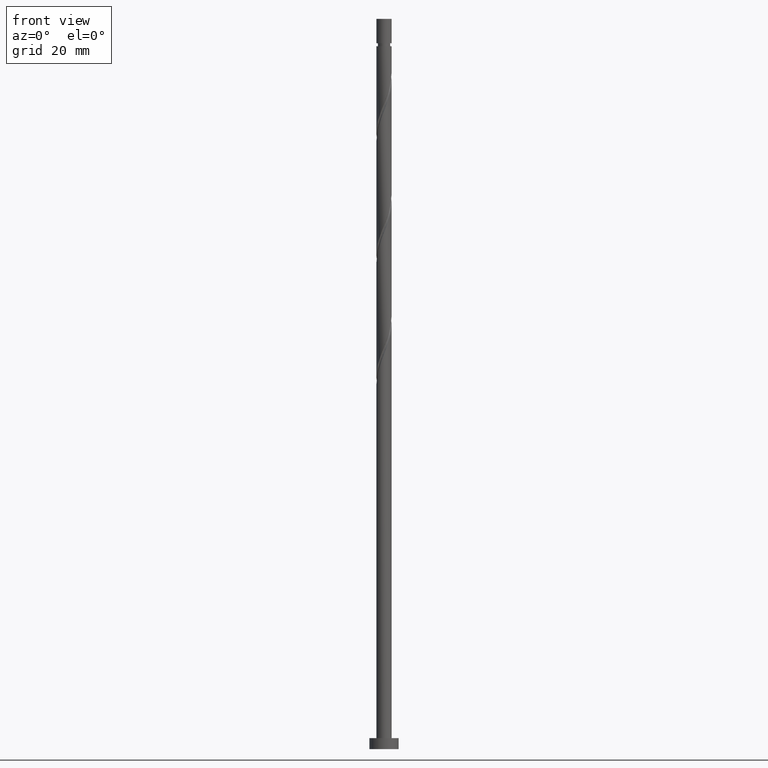
[diagram: clean part render]
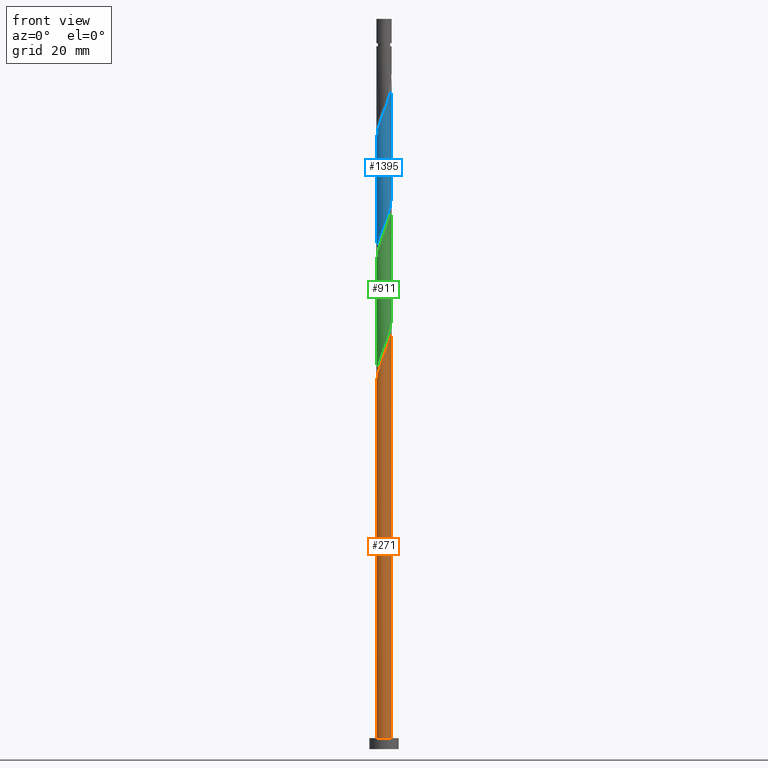
[diagram: same view with three faces highlighted in distinct colors, each labeled with its STEP entity id]
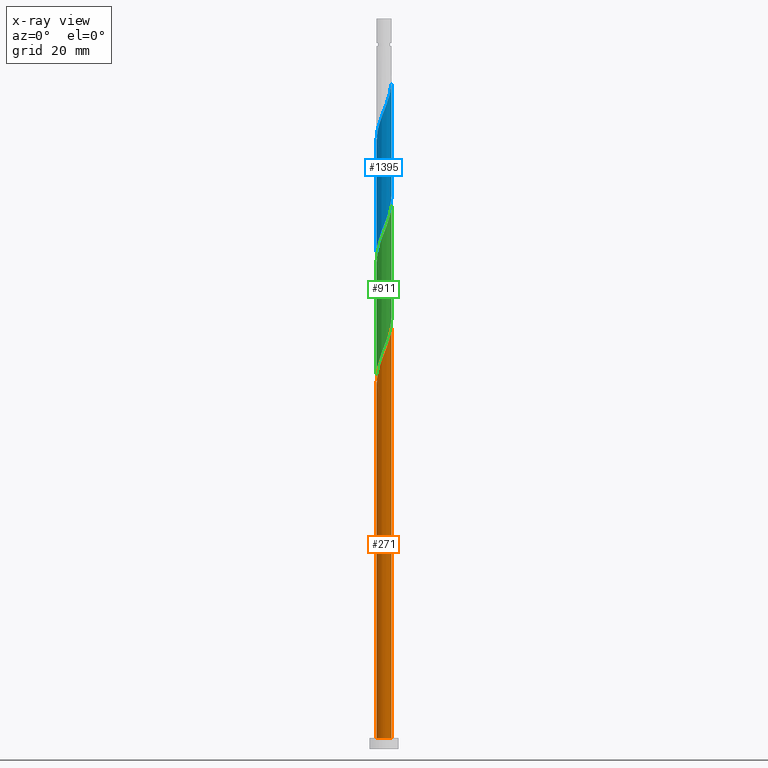
[diagram: x-ray of the same camera — body ghosted, the three highlighted faces saturated]
A machine part, front view with three faces highlighted in distinct colors.
The next image is the same camera in x-ray (body ghosted, the three faces saturated) — at least one of them is partly hidden behind the body in this view.
Their STEP definitions:

[orange] entity #271 — the highlighted cylindrical surface (edge-blend (fillet) strip) has radius 2.1 mm, axis along (-0, -0, -1).
#65 = FACE_OUTER_BOUND ( 'NONE', #447, .T. ) ;
#77 = ORIENTED_EDGE ( 'NONE', *, *, #1539, .F. ) ;
#81 = EDGE_CURVE ( 'NONE', #1421, #1698, #626, .T. ) ;
#103 = CARTESIAN_POINT ( 'NONE',  ( 1.390907446731897590, -1.573332919195986612, 111.9406361882132757 ) ) ;
#129 = CARTESIAN_POINT ( 'NONE',  ( 0.1469538835499195339, -2.113016884088533942, 108.4684139659910613 ) ) ;
#137 = CARTESIAN_POINT ( 'NONE',  ( 0.6888355636196421550, -2.002983115911472378, 109.8573028548799613 ) ) ;
#231 = CARTESIAN_POINT ( 'NONE',  ( -2.100000000000003197, -1.517809121027418622E-15, 99.76595842189209407 ) ) ;
#261 = CARTESIAN_POINT ( 'NONE',  ( -1.159729562813039960, -1.750721948550792995, 104.9961917437688470 ) ) ;
#266 = VECTOR ( 'NONE', #1548, 1000.000000000000000 ) ;
#271 = ADVANCED_FACE ( 'NONE', ( #65 ), #1303, .T. ) ;
#278 = CARTESIAN_POINT ( 'NONE',  ( 2.100000000000003197, 2.093529822106784298E-16, 116.4326250885587655 ) ) ;
#285 = CARTESIAN_POINT ( 'NONE',  ( 0.000000000000000000, 0.000000000000000000, 3.000000000000000000 ) ) ;
#286 = CARTESIAN_POINT ( 'NONE',  ( -2.100000000000003197, -1.517809121027418622E-15, 99.76595842189209407 ) ) ;
#387 = DIRECTION ( 'NONE',  ( 0.000000000000000000, 0.000000000000000000, 1.000000000000000000 ) ) ;
#395 = CARTESIAN_POINT ( 'NONE',  ( -2.002983115911472378, -0.6888355636196421550, 101.5239695215465900 ) ) ;
#447 = EDGE_LOOP ( 'NONE', ( #77, #869, #794, #931 ) ) ;
#500 = CARTESIAN_POINT ( 'NONE',  ( 2.096034463814500537, -0.1289942886405184008, 116.1073028548799471 ) ) ;
#522 = CARTESIAN_POINT ( 'NONE',  ( -1.879716237191310535, -0.9363049010014599105, 102.2184139659910471 ) ) ;
#613 = DIRECTION ( 'NONE',  ( -0.000000000000000000, -0.000000000000000000, -1.000000000000000000 ) ) ;
#626 = LINE ( 'NONE', #1406, #266 ) ;
#638 = CARTESIAN_POINT ( 'NONE',  ( 0.000000000000000000, 0.000000000000000000, 200.0000000000000000 ) ) ;
#641 = CARTESIAN_POINT ( 'NONE',  ( 1.750721948550792550, -1.159729562813040848, 113.3295250771021756 ) ) ;
#680 = CARTESIAN_POINT ( 'NONE',  ( 2.100000000000000089, 2.571758278209441957E-16, 200.0000000000000000 ) ) ;
#704 = DIRECTION ( 'NONE',  ( -0.000000000000000000, -0.000000000000000000, -1.000000000000000000 ) ) ;
#727 =( BOUNDED_CURVE ( )  B_SPLINE_CURVE ( 2, ( #231, #1738, #1448, #395, #522, #933, #1308, #1466, #261, #939, #796, #1334, #1475, #129, #1744, #137, #1168, #1709, #103, #1042, #641, #777, #1178, #1714, #500, #1585, #1315 ),
 .UNSPECIFIED., .F., .T. ) 
 B_SPLINE_CURVE_WITH_KNOTS ( ( 3, 2, 2, 2, 2, 2, 2, 2, 2, 2, 2, 2, 2, 3 ),
 ( 0.05453176698144632240, 0.06250000000000000000, 0.07291666666666662966, 0.08333333333333337034, 0.09375000000000000000, 0.1041666666666666297, 0.1145833333333333703, 0.1250000000000000000, 0.1354166666666666297, 0.1458333333333333703, 0.1562500000000000000, 0.1666666666666666297, 0.1770833333333333703, 0.1795317669814462669 ),
 .UNSPECIFIED. ) 
 CURVE ( )  GEOMETRIC_REPRESENTATION_ITEM ( )  RATIONAL_B_SPLINE_CURVE ( ( 0.9062941362546566015, 0.9031415850403607948, 0.9090909090909363721, 0.9013135103398545178, 0.9090909090909363721, 0.9013135103398545178, 0.9090909090909363721, 0.9013135103398545178, 0.9090909090909363721, 0.9013135103398545178, 0.9090909090909363721, 0.9013135103398545178, 0.9090909090909363721, 0.9013135103398545178, 0.9090909090909363721, 0.9013135103398545178, 0.9090909090909363721, 0.9013135103398545178, 0.9090909090909363721, 0.9013135103398545178, 0.9090909090909363721, 0.9013135103398545178, 0.9090909090909363721, 0.9013135103398545178, 0.9090909090909363721, 0.9072628343904300952, 0.9062941362546566015 ) ) 
 REPRESENTATION_ITEM ( '' )  );
#746 = AXIS2_PLACEMENT_3D ( 'NONE', #638, #613, #1418 ) ;
#777 = CARTESIAN_POINT ( 'NONE',  ( 1.903403242021069364, -0.9292426457052566091, 114.0239695215466185 ) ) ;
#794 = ORIENTED_EDGE ( 'NONE', *, *, #81, .T. ) ;
#796 = CARTESIAN_POINT ( 'NONE',  ( -0.6670925532681054593, -1.991227642780768248, 106.3850806326577043 ) ) ;
#826 = AXIS2_PLACEMENT_3D ( 'NONE', #285, #387, #1363 ) ;
#869 = ORIENTED_EDGE ( 'NONE', *, *, #1403, .F. ) ;
#931 = ORIENTED_EDGE ( 'NONE', *, *, #1225, .T. ) ;
#933 = CARTESIAN_POINT ( 'NONE',  ( -1.756449358471149358, -1.183774238383277222, 102.9128584104355184 ) ) ;
#939 = CARTESIAN_POINT ( 'NONE',  ( -0.9292426457052566091, -1.903403242021069586, 105.6906361882132899 ) ) ;
#1013 = CARTESIAN_POINT ( 'NONE',  ( -2.100000000000000089, 0.000000000000000000, 3.000000000000000000 ) ) ;
#1042 = CARTESIAN_POINT ( 'NONE',  ( 1.598040655080517958, -1.390216479920825421, 112.6350806326577185 ) ) ;
#1168 = CARTESIAN_POINT ( 'NONE',  ( 0.9363049010014595774, -1.879716237191310979, 110.5517472993243899 ) ) ;
#1178 = CARTESIAN_POINT ( 'NONE',  ( 1.991227642780768248, -0.6670925532681055703, 114.7184139659910613 ) ) ;
#1225 = EDGE_CURVE ( 'NONE', #1698, #1656, #1594, .T. ) ;
#1235 = VERTEX_POINT ( 'NONE', #278 ) ;
#1240 = LINE ( 'NONE', #680, #1595 ) ;
#1303 = CYLINDRICAL_SURFACE ( 'NONE', #746, 2.100000000000000089 ) ;
#1308 = CARTESIAN_POINT ( 'NONE',  ( -1.573332919195986390, -1.390907446731897590, 103.6073028548799471 ) ) ;
#1315 = CARTESIAN_POINT ( 'NONE',  ( 2.100000000000003197, 2.093529822106784298E-16, 116.4326250885587655 ) ) ;
#1334 = CARTESIAN_POINT ( 'NONE',  ( -0.4049424608309540319, -2.079052043540467132, 107.0795250771021898 ) ) ;
#1363 = DIRECTION ( 'NONE',  ( 1.000000000000000000, 0.000000000000000000, 0.000000000000000000 ) ) ;
#1403 = EDGE_CURVE ( 'NONE', #1421, #1235, #727, .T. ) ;
#1406 = CARTESIAN_POINT ( 'NONE',  ( -2.100000000000000089, 0.000000000000000000, 200.0000000000000000 ) ) ;
#1418 = DIRECTION ( 'NONE',  ( -1.000000000000000000, 0.000000000000000000, 0.000000000000000000 ) ) ;
#1421 = VERTEX_POINT ( 'NONE', #286 ) ;
#1448 = CARTESIAN_POINT ( 'NONE',  ( -2.058000000000002938, -0.4178947235847812469, 100.8295250771021756 ) ) ;
#1466 = CARTESIAN_POINT ( 'NONE',  ( -1.390216479920825421, -1.598040655080517958, 104.3017472993243899 ) ) ;
#1475 = CARTESIAN_POINT ( 'NONE',  ( -0.1289942886405173184, -2.096034463814500537, 107.7739695215465900 ) ) ;
#1539 = EDGE_CURVE ( 'NONE', #1235, #1656, #1240, .T. ) ;
#1548 = DIRECTION ( 'NONE',  ( -0.000000000000000000, -0.000000000000000000, -1.000000000000000000 ) ) ;
#1568 = CARTESIAN_POINT ( 'NONE',  ( 2.100000000000000089, 2.571758278209441957E-16, 3.000000000000000000 ) ) ;
#1585 = CARTESIAN_POINT ( 'NONE',  ( 2.100000000000002753, -0.06455809848111707105, 116.2694614005306164 ) ) ;
#1594 = CIRCLE ( 'NONE', #826, 2.100000000000000089 ) ;
#1595 = VECTOR ( 'NONE', #704, 1000.000000000000000 ) ;
#1656 = VERTEX_POINT ( 'NONE', #1568 ) ;
#1698 = VERTEX_POINT ( 'NONE', #1013 ) ;
#1709 = CARTESIAN_POINT ( 'NONE',  ( 1.183774238383277222, -1.756449358471149358, 111.2461917437688470 ) ) ;
#1714 = CARTESIAN_POINT ( 'NONE',  ( 2.079052043540467132, -0.4049424608309550866, 115.4128584104355184 ) ) ;
#1738 = CARTESIAN_POINT ( 'NONE',  ( -2.100000000000002753, -0.2110579412044350234, 100.2993847910813656 ) ) ;
#1744 = CARTESIAN_POINT ( 'NONE',  ( 0.4178947235847810249, -2.058000000000002938, 109.1628584104354758 ) ) ;

[blue] entity #1395 — the highlighted cylindrical surface (edge-blend (fillet) strip) has radius 2.1 mm, axis along (-0, -0, -1).
#24 = VERTEX_POINT ( 'NONE', #468 ) ;
#37 = CARTESIAN_POINT ( 'NONE',  ( 1.879716237191306538, -0.9363049010014606877, 149.4406361882132899 ) ) ;
#40 = CARTESIAN_POINT ( 'NONE',  ( -0.4049424608309540319, -2.079052043540467132, 173.7461917437688612 ) ) ;
#72 = CARTESIAN_POINT ( 'NONE',  ( -1.390907446731896480, -1.573332919195983504, 139.7184139659910329 ) ) ;
#79 = CARTESIAN_POINT ( 'NONE',  ( -0.1469538835499210883, -2.113016884088530833, 143.1906361882132614 ) ) ;
#91 = CARTESIAN_POINT ( 'NONE',  ( 0.9363049010014595774, -1.879716237191310979, 177.2184139659910898 ) ) ;
#92 = LINE ( 'NONE', #1160, #123 ) ;
#97 = CARTESIAN_POINT ( 'NONE',  ( 0.1289942886405152644, -2.096034463814497428, 143.8850806326576901 ) ) ;
#108 = EDGE_CURVE ( 'NONE', #24, #1257, #92, .T. ) ;
#112 = DIRECTION ( 'NONE',  ( -0.000000000000000000, -0.000000000000000000, -1.000000000000000000 ) ) ;
#123 = VECTOR ( 'NONE', #966, 1000.000000000000000 ) ;
#172 = CARTESIAN_POINT ( 'NONE',  ( -0.6670925532681054593, -1.991227642780768248, 173.0517472993243757 ) ) ;
#197 = CARTESIAN_POINT ( 'NONE',  ( -1.573332919195986390, -1.390907446731897590, 170.2739695215466043 ) ) ;
#236 = CARTESIAN_POINT ( 'NONE',  ( 1.159729562813037296, -1.750721948550791884, 146.6628584104354900 ) ) ;
#273 = CYLINDRICAL_SURFACE ( 'NONE', #1200, 2.100000000000000089 ) ;
#319 = CARTESIAN_POINT ( 'NONE',  ( -2.100000000000003642, -0.2110579412044321923, 166.9660514577480797 ) ) ;
#345 = EDGE_CURVE ( 'NONE', #1306, #871, #1113, .T. ) ;
#348 = CARTESIAN_POINT ( 'NONE',  ( 0.6888355636196421550, -2.002983115911472378, 176.5239695215466043 ) ) ;
#356 = CARTESIAN_POINT ( 'NONE',  ( 2.079052043540467132, -0.4049424608309550866, 182.0795250771022324 ) ) ;
#366 = CARTESIAN_POINT ( 'NONE',  ( 1.183774238383277222, -1.756449358471149358, 177.9128584104355184 ) ) ;
#374 = CARTESIAN_POINT ( 'NONE',  ( -0.6888355636196425991, -2.002983115911469270, 141.8017472993244041 ) ) ;
#411 = DIRECTION ( 'NONE',  ( -0.000000000000000000, -0.000000000000000000, -1.000000000000000000 ) ) ;
#413 = CARTESIAN_POINT ( 'NONE',  ( 1.573332919195983504, -1.390907446731896480, 148.0517472993244041 ) ) ;
#429 = CARTESIAN_POINT ( 'NONE',  ( -1.159729562813039960, -1.750721948550792995, 171.6628584104354900 ) ) ;
#441 = ORIENTED_EDGE ( 'NONE', *, *, #1625, .F. ) ;
#462 = CARTESIAN_POINT ( 'NONE',  ( 2.002983115911468381, -0.6888355636196433762, 150.1350806326577469 ) ) ;
#468 = CARTESIAN_POINT ( 'NONE',  ( -2.100000000000002753, -8.299350366209036018E-16, 166.4326250885587513 ) ) ;
#483 = CARTESIAN_POINT ( 'NONE',  ( 0.6670925532681029058, -1.991227642780765139, 145.2739695215466043 ) ) ;
#485 = CARTESIAN_POINT ( 'NONE',  ( 1.991227642780768248, -0.6670925532681055703, 181.3850806326577185 ) ) ;
#575 = CARTESIAN_POINT ( 'NONE',  ( -0.1289942886405173184, -2.096034463814500537, 174.4406361882132614 ) ) ;
#592 = CARTESIAN_POINT ( 'NONE',  ( -1.879716237191310535, -0.9363049010014599105, 168.8850806326576901 ) ) ;
#593 = ORIENTED_EDGE ( 'NONE', *, *, #609, .F. ) ;
#602 = ORIENTED_EDGE ( 'NONE', *, *, #108, .T. ) ;
#609 = EDGE_CURVE ( 'NONE', #24, #1306, #1038, .T. ) ;
#625 = CARTESIAN_POINT ( 'NONE',  ( 1.903403242021069364, -0.9292426457052566091, 180.6906361882133183 ) ) ;
#634 = CARTESIAN_POINT ( 'NONE',  ( -1.183774238383277000, -1.756449358471145805, 140.4128584104355184 ) ) ;
#668 =( BOUNDED_CURVE ( )  B_SPLINE_CURVE ( 2, ( #1630, #1246, #1636, #462, #37, #1005, #413, #955, #236, #771, #483, #1589, #97, #79, #1577, #374, #1684, #634, #72, #1560, #1287, #1152, #749, #762, #1028, #918, #740 ),
 .UNSPECIFIED., .F., .T. ) 
 B_SPLINE_CURVE_WITH_KNOTS ( ( 3, 2, 2, 2, 2, 2, 2, 2, 2, 2, 2, 2, 2, 3 ),
 ( 0.5545317669814460171, 0.5625000000000000000, 0.5729166666666666297, 0.5833333333333333703, 0.5937500000000000000, 0.6041666666666666297, 0.6145833333333333703, 0.6250000000000000000, 0.6354166666666666297, 0.6458333333333333703, 0.6562500000000000000, 0.6666666666666666297, 0.6770833333333333703, 0.6795317669814463502 ),
 .UNSPECIFIED. ) 
 CURVE ( )  GEOMETRIC_REPRESENTATION_ITEM ( )  RATIONAL_B_SPLINE_CURVE ( ( 0.9062941362546507174, 0.9031415850403544665, 0.9090909090909301549, 0.9013135103398484116, 0.9090909090909301549, 0.9013135103398484116, 0.9090909090909301549, 0.9013135103398484116, 0.9090909090909301549, 0.9013135103398484116, 0.9090909090909301549, 0.9013135103398484116, 0.9090909090909301549, 0.9013135103398484116, 0.9090909090909301549, 0.9013135103398484116, 0.9090909090909301549, 0.9013135103398484116, 0.9090909090909301549, 0.9013135103398484116, 0.9090909090909301549, 0.9013135103398484116, 0.9090909090909301549, 0.9013135103398484116, 0.9090909090909301549, 0.9072628343904238779, 0.9062941362546503843 ) ) 
 REPRESENTATION_ITEM ( '' )  );
#725 = CARTESIAN_POINT ( 'NONE',  ( -2.058000000000002938, -0.4178947235847812469, 167.4961917437688612 ) ) ;
#740 = CARTESIAN_POINT ( 'NONE',  ( -2.100000000000000089, 2.572050924302638169E-15, 135.2264250656455715 ) ) ;
#749 = CARTESIAN_POINT ( 'NONE',  ( -1.991227642780765139, -0.6670925532681031278, 136.9406361882132899 ) ) ;
#762 = CARTESIAN_POINT ( 'NONE',  ( -2.079052043540464911, -0.4049424608309523665, 136.2461917437688328 ) ) ;
#771 = CARTESIAN_POINT ( 'NONE',  ( 0.9292426457052532784, -1.903403242021066477, 145.9684139659910613 ) ) ;
#773 = CARTESIAN_POINT ( 'NONE',  ( 2.100000000000004086, -0.06455809848109506088, 182.9361280671973589 ) ) ;
#803 = CARTESIAN_POINT ( 'NONE',  ( 0.000000000000000000, 0.000000000000000000, 200.0000000000000000 ) ) ;
#845 = CARTESIAN_POINT ( 'NONE',  ( -0.9292426457052566091, -1.903403242021069586, 172.3573028548799471 ) ) ;
#871 = VERTEX_POINT ( 'NONE', #1431 ) ;
#893 = CARTESIAN_POINT ( 'NONE',  ( 1.390907446731897590, -1.573332919195986612, 178.6073028548799471 ) ) ;
#909 = CARTESIAN_POINT ( 'NONE',  ( 2.100000000000002753, -4.710442099740264485E-16, 183.0992917552254653 ) ) ;
#918 = CARTESIAN_POINT ( 'NONE',  ( -2.100000000000000089, -0.06455809848111240812, 135.3895887536737064 ) ) ;
#920 = CARTESIAN_POINT ( 'NONE',  ( 1.750721948550792550, -1.159729562813040848, 179.9961917437688044 ) ) ;
#926 = DIRECTION ( 'NONE',  ( -1.000000000000000000, 0.000000000000000000, 0.000000000000000000 ) ) ;
#955 = CARTESIAN_POINT ( 'NONE',  ( 1.390216479920821868, -1.598040655080516625, 147.3573028548799186 ) ) ;
#966 = DIRECTION ( 'NONE',  ( -0.000000000000000000, -0.000000000000000000, -1.000000000000000000 ) ) ;
#976 = ORIENTED_EDGE ( 'NONE', *, *, #345, .F. ) ;
#981 = CARTESIAN_POINT ( 'NONE',  ( 2.100000000000000089, 2.571758278209441957E-16, 200.0000000000000000 ) ) ;
#1005 = CARTESIAN_POINT ( 'NONE',  ( 1.756449358471145361, -1.183774238383277666, 148.7461917437688328 ) ) ;
#1028 = CARTESIAN_POINT ( 'NONE',  ( -2.096034463814497428, -0.1289942886405159583, 135.5517472993244326 ) ) ;
#1038 =( BOUNDED_CURVE ( )  B_SPLINE_CURVE ( 2, ( #1531, #319, #725, #1264, #592, #1134, #197, #1646, #429, #845, #172, #40, #575, #1655, #1579, #348, #91, #366, #893, #1416, #920, #625, #485, #356, #1193, #773, #909 ),
 .UNSPECIFIED., .F., .T. ) 
 B_SPLINE_CURVE_WITH_KNOTS ( ( 3, 2, 2, 2, 2, 2, 2, 2, 2, 2, 2, 2, 2, 3 ),
 ( 0.5545317669814461281, 0.5625000000000000000, 0.5729166666666667407, 0.5833333333333332593, 0.5937500000000000000, 0.6041666666666667407, 0.6145833333333332593, 0.6250000000000000000, 0.6354166666666667407, 0.6458333333333332593, 0.6562500000000000000, 0.6666666666666667407, 0.6770833333333332593, 0.6795317669814470163 ),
 .UNSPECIFIED. ) 
 CURVE ( )  GEOMETRIC_REPRESENTATION_ITEM ( )  RATIONAL_B_SPLINE_CURVE ( ( 0.9062941362546567126, 0.9031415850403606838, 0.9090909090909363721, 0.9013135103398545178, 0.9090909090909363721, 0.9013135103398545178, 0.9090909090909363721, 0.9013135103398545178, 0.9090909090909363721, 0.9013135103398545178, 0.9090909090909363721, 0.9013135103398545178, 0.9090909090909363721, 0.9013135103398545178, 0.9090909090909363721, 0.9013135103398545178, 0.9090909090909363721, 0.9013135103398545178, 0.9090909090909363721, 0.9013135103398545178, 0.9090909090909363721, 0.9013135103398545178, 0.9090909090909363721, 0.9013135103398545178, 0.9090909090909363721, 0.9072628343904295400, 0.9062941362546560464 ) ) 
 REPRESENTATION_ITEM ( '' )  );
#1053 = VECTOR ( 'NONE', #411, 1000.000000000000000 ) ;
#1113 = LINE ( 'NONE', #981, #1053 ) ;
#1134 = CARTESIAN_POINT ( 'NONE',  ( -1.756449358471149358, -1.183774238383277222, 169.5795250771022609 ) ) ;
#1151 = EDGE_LOOP ( 'NONE', ( #976, #593, #602, #441 ) ) ;
#1152 = CARTESIAN_POINT ( 'NONE',  ( -1.903403242021066477, -0.9292426457052532784, 137.6350806326577469 ) ) ;
#1160 = CARTESIAN_POINT ( 'NONE',  ( -2.100000000000000089, 0.000000000000000000, 200.0000000000000000 ) ) ;
#1193 = CARTESIAN_POINT ( 'NONE',  ( 2.096034463814500537, -0.1289942886405184008, 182.7739695215466327 ) ) ;
#1200 = AXIS2_PLACEMENT_3D ( 'NONE', #803, #112, #926 ) ;
#1207 = CARTESIAN_POINT ( 'NONE',  ( 2.100000000000002753, -4.710442099740264485E-16, 183.0992917552254653 ) ) ;
#1246 = CARTESIAN_POINT ( 'NONE',  ( 2.100000000000001421, -0.2110579412044280290, 151.3596653631230140 ) ) ;
#1257 = VERTEX_POINT ( 'NONE', #1355 ) ;
#1264 = CARTESIAN_POINT ( 'NONE',  ( -2.002983115911472378, -0.6888355636196421550, 168.1906361882132614 ) ) ;
#1287 = CARTESIAN_POINT ( 'NONE',  ( -1.750721948550791440, -1.159729562813037740, 138.3295250771022040 ) ) ;
#1306 = VERTEX_POINT ( 'NONE', #1207 ) ;
#1355 = CARTESIAN_POINT ( 'NONE',  ( -2.100000000000000089, 2.572050924302638169E-15, 135.2264250656455715 ) ) ;
#1395 = ADVANCED_FACE ( 'NONE', ( #1575 ), #273, .T. ) ;
#1416 = CARTESIAN_POINT ( 'NONE',  ( 1.598040655080517958, -1.390216479920825421, 179.3017472993243757 ) ) ;
#1431 = CARTESIAN_POINT ( 'NONE',  ( 2.100000000000000089, 2.736542553182457793E-15, 151.8930917323122856 ) ) ;
#1531 = CARTESIAN_POINT ( 'NONE',  ( -2.100000000000002753, -8.299350366209036018E-16, 166.4326250885587513 ) ) ;
#1560 = CARTESIAN_POINT ( 'NONE',  ( -1.598040655080516625, -1.390216479920822090, 139.0239695215465758 ) ) ;
#1575 = FACE_OUTER_BOUND ( 'NONE', #1151, .T. ) ;
#1577 = CARTESIAN_POINT ( 'NONE',  ( -0.4178947235847813024, -2.057999999999999829, 142.4961917437688044 ) ) ;
#1579 = CARTESIAN_POINT ( 'NONE',  ( 0.4178947235847810249, -2.058000000000002938, 175.8295250771022040 ) ) ;
#1589 = CARTESIAN_POINT ( 'NONE',  ( 0.4049424608309518114, -2.079052043540464467, 144.5795250771022040 ) ) ;
#1625 = EDGE_CURVE ( 'NONE', #871, #1257, #668, .T. ) ;
#1630 = CARTESIAN_POINT ( 'NONE',  ( 2.100000000000000089, 2.736542553182457793E-15, 151.8930917323123140 ) ) ;
#1636 = CARTESIAN_POINT ( 'NONE',  ( 2.057999999999999829, -0.4178947235847814135, 150.8295250771021756 ) ) ;
#1646 = CARTESIAN_POINT ( 'NONE',  ( -1.390216479920825421, -1.598040655080517958, 170.9684139659910613 ) ) ;
#1655 = CARTESIAN_POINT ( 'NONE',  ( 0.1469538835499195339, -2.113016884088533942, 175.1350806326577469 ) ) ;
#1684 = CARTESIAN_POINT ( 'NONE',  ( -0.9363049010014595774, -1.879716237191306982, 141.1073028548799755 ) ) ;

[green] entity #911 — the highlighted cylindrical surface (edge-blend (fillet) strip) has radius 2.1 mm, axis along (-0, -0, -1).
#8 = CARTESIAN_POINT ( 'NONE',  ( -0.6670925532681054593, -1.991227642780768248, 139.7184139659910613 ) ) ;
#32 = CARTESIAN_POINT ( 'NONE',  ( 2.100000000000003197, 2.093529822106784298E-16, 149.7659584218921225 ) ) ;
#53 = EDGE_CURVE ( 'NONE', #1100, #1735, #1002, .T. ) ;
#58 = EDGE_CURVE ( 'NONE', #1390, #1100, #1583, .T. ) ;
#82 = CARTESIAN_POINT ( 'NONE',  ( 1.390907446731897590, -1.573332919195986612, 145.2739695215466043 ) ) ;
#95 = CARTESIAN_POINT ( 'NONE',  ( 0.000000000000000000, 0.000000000000000000, 200.0000000000000000 ) ) ;
#118 = DIRECTION ( 'NONE',  ( -1.000000000000000000, 0.000000000000000000, 0.000000000000000000 ) ) ;
#119 = CARTESIAN_POINT ( 'NONE',  ( -2.096034463814497428, -0.1289942886405159583, 102.2184139659910755 ) ) ;
#180 = VECTOR ( 'NONE', #925, 1000.000000000000000 ) ;
#190 = ORIENTED_EDGE ( 'NONE', *, *, #1399, .F. ) ;
#198 = ORIENTED_EDGE ( 'NONE', *, *, #782, .T. ) ;
#244 = CARTESIAN_POINT ( 'NONE',  ( 2.057999999999999829, -0.4178947235847814135, 117.4961917437688186 ) ) ;
#251 = CARTESIAN_POINT ( 'NONE',  ( 1.159729562813037296, -1.750721948550791884, 113.3295250771021898 ) ) ;
#282 = CARTESIAN_POINT ( 'NONE',  ( 0.1469538835499195339, -2.113016884088533942, 141.8017472993244041 ) ) ;
#318 = VECTOR ( 'NONE', #1111, 1000.000000000000000 ) ;
#327 = CARTESIAN_POINT ( 'NONE',  ( 2.100000000000000089, 2.571758278209441957E-16, 200.0000000000000000 ) ) ;
#363 = CARTESIAN_POINT ( 'NONE',  ( 0.6670925532681029058, -1.991227642780765139, 111.9406361882132899 ) ) ;
#371 = CARTESIAN_POINT ( 'NONE',  ( 0.1289942886405152644, -2.096034463814497428, 110.5517472993243757 ) ) ;
#373 =( BOUNDED_CURVE ( )  B_SPLINE_CURVE ( 2, ( #1072, #1607, #244, #664, #1054, #769, #648, #1323, #251, #1198, #363, #1597, #371, #528, #381, #1187, #905, #787, #1728, #1613, #1065, #491, #1457, #1440, #119, #656, #1033 ),
 .UNSPECIFIED., .F., .T. ) 
 B_SPLINE_CURVE_WITH_KNOTS ( ( 3, 2, 2, 2, 2, 2, 2, 2, 2, 2, 2, 2, 2, 3 ),
 ( 0.8045317669814462391, 0.8125000000000000000, 0.8229166666666666297, 0.8333333333333333703, 0.8437500000000000000, 0.8541666666666666297, 0.8645833333333333703, 0.8750000000000000000, 0.8854166666666666297, 0.8958333333333333703, 0.9062500000000000000, 0.9166666666666666297, 0.9270833333333333703, 0.9295317669814463502 ),
 .UNSPECIFIED. ) 
 CURVE ( )  GEOMETRIC_REPRESENTATION_ITEM ( )  RATIONAL_B_SPLINE_CURVE ( ( 0.9062941362546503843, 0.9031415850403545775, 0.9090909090909301549, 0.9013135103398484116, 0.9090909090909301549, 0.9013135103398484116, 0.9090909090909301549, 0.9013135103398484116, 0.9090909090909301549, 0.9013135103398484116, 0.9090909090909301549, 0.9013135103398484116, 0.9090909090909301549, 0.9013135103398484116, 0.9090909090909301549, 0.9013135103398484116, 0.9090909090909301549, 0.9013135103398484116, 0.9090909090909301549, 0.9013135103398484116, 0.9090909090909301549, 0.9013135103398484116, 0.9090909090909301549, 0.9013135103398484116, 0.9090909090909301549, 0.9072628343904238779, 0.9062941362546503843 ) ) 
 REPRESENTATION_ITEM ( '' )  );
#381 = CARTESIAN_POINT ( 'NONE',  ( -0.4178947235847813024, -2.057999999999999829, 109.1628584104354900 ) ) ;
#400 = CARTESIAN_POINT ( 'NONE',  ( -1.159729562813039960, -1.750721948550792995, 138.3295250771022040 ) ) ;
#409 = CARTESIAN_POINT ( 'NONE',  ( -0.1289942886405173184, -2.096034463814500537, 141.1073028548799471 ) ) ;
#435 = CARTESIAN_POINT ( 'NONE',  ( -2.100000000000003197, -1.517809121027418622E-15, 133.0992917552254369 ) ) ;
#491 = CARTESIAN_POINT ( 'NONE',  ( -1.903403242021066477, -0.9292426457052532784, 104.3017472993243757 ) ) ;
#510 = CARTESIAN_POINT ( 'NONE',  ( -2.100000000000003197, -1.517809121027418622E-15, 133.0992917552254369 ) ) ;
#528 = CARTESIAN_POINT ( 'NONE',  ( -0.1469538835499210883, -2.113016884088530833, 109.8573028548799613 ) ) ;
#533 = CARTESIAN_POINT ( 'NONE',  ( -1.879716237191310535, -0.9363049010014599105, 135.5517472993244041 ) ) ;
#630 = VERTEX_POINT ( 'NONE', #1638 ) ;
#631 = LINE ( 'NONE', #1292, #180 ) ;
#648 = CARTESIAN_POINT ( 'NONE',  ( 1.573332919195983504, -1.390907446731896480, 114.7184139659910898 ) ) ;
#656 = CARTESIAN_POINT ( 'NONE',  ( -2.100000000000000089, -0.06455809848111240812, 102.0562554203403778 ) ) ;
#664 = CARTESIAN_POINT ( 'NONE',  ( 2.002983115911468381, -0.6888355636196433762, 116.8017472993243899 ) ) ;
#676 = CARTESIAN_POINT ( 'NONE',  ( -1.573332919195986390, -1.390907446731897590, 136.9406361882132899 ) ) ;
#769 = CARTESIAN_POINT ( 'NONE',  ( 1.756449358471145361, -1.183774238383277666, 115.4128584104355184 ) ) ;
#782 = EDGE_CURVE ( 'NONE', #1390, #630, #631, .T. ) ;
#787 = CARTESIAN_POINT ( 'NONE',  ( -1.183774238383277000, -1.756449358471145805, 107.0795250771022182 ) ) ;
#808 = CARTESIAN_POINT ( 'NONE',  ( -2.058000000000002938, -0.4178947235847812469, 134.1628584104355184 ) ) ;
#818 = CARTESIAN_POINT ( 'NONE',  ( 0.4178947235847810249, -2.058000000000002938, 142.4961917437688044 ) ) ;
#833 = CARTESIAN_POINT ( 'NONE',  ( 2.100000000000003197, -0.06455809848110902194, 149.6027947338639876 ) ) ;
#848 = CARTESIAN_POINT ( 'NONE',  ( -2.002983115911472378, -0.6888355636196421550, 134.8573028548799755 ) ) ;
#884 = CARTESIAN_POINT ( 'NONE',  ( 1.991227642780768248, -0.6670925532681055703, 148.0517472993243473 ) ) ;
#896 = ORIENTED_EDGE ( 'NONE', *, *, #53, .F. ) ;
#905 = CARTESIAN_POINT ( 'NONE',  ( -0.9363049010014595774, -1.879716237191306982, 107.7739695215465758 ) ) ;
#911 = ADVANCED_FACE ( 'NONE', ( #1690 ), #1456, .T. ) ;
#925 = DIRECTION ( 'NONE',  ( -0.000000000000000000, -0.000000000000000000, -1.000000000000000000 ) ) ;
#974 = CARTESIAN_POINT ( 'NONE',  ( 1.750721948550792550, -1.159729562813040848, 146.6628584104354616 ) ) ;
#979 = CARTESIAN_POINT ( 'NONE',  ( -2.100000000000001421, -0.2110579412044416014, 133.6327181244147368 ) ) ;
#1002 = LINE ( 'NONE', #327, #318 ) ;
#1033 = CARTESIAN_POINT ( 'NONE',  ( -2.100000000000000089, 2.572050924302638169E-15, 101.8930917323122287 ) ) ;
#1054 = CARTESIAN_POINT ( 'NONE',  ( 1.879716237191306538, -0.9363049010014606877, 116.1073028548799329 ) ) ;
#1065 = CARTESIAN_POINT ( 'NONE',  ( -1.750721948550791440, -1.159729562813037740, 104.9961917437688470 ) ) ;
#1072 = CARTESIAN_POINT ( 'NONE',  ( 2.100000000000000089, 2.736542553182457793E-15, 118.5597583989789001 ) ) ;
#1077 = CARTESIAN_POINT ( 'NONE',  ( -1.756449358471149358, -1.183774238383277222, 136.2461917437688612 ) ) ;
#1086 = CARTESIAN_POINT ( 'NONE',  ( -0.4049424608309540319, -2.079052043540467132, 140.4128584104355184 ) ) ;
#1100 = VERTEX_POINT ( 'NONE', #1737 ) ;
#1111 = DIRECTION ( 'NONE',  ( -0.000000000000000000, -0.000000000000000000, -1.000000000000000000 ) ) ;
#1154 = CARTESIAN_POINT ( 'NONE',  ( 2.079052043540467132, -0.4049424608309550866, 148.7461917437688612 ) ) ;
#1171 = CARTESIAN_POINT ( 'NONE',  ( 2.100000000000000089, 2.736542553182457793E-15, 118.5597583989789001 ) ) ;
#1187 = CARTESIAN_POINT ( 'NONE',  ( -0.6888355636196425991, -2.002983115911469270, 108.4684139659910471 ) ) ;
#1198 = CARTESIAN_POINT ( 'NONE',  ( 0.9292426457052532784, -1.903403242021066477, 112.6350806326577327 ) ) ;
#1224 = AXIS2_PLACEMENT_3D ( 'NONE', #95, #1713, #118 ) ;
#1292 = CARTESIAN_POINT ( 'NONE',  ( -2.100000000000000089, 0.000000000000000000, 200.0000000000000000 ) ) ;
#1295 = CARTESIAN_POINT ( 'NONE',  ( 1.598040655080517958, -1.390216479920825421, 145.9684139659910613 ) ) ;
#1323 = CARTESIAN_POINT ( 'NONE',  ( 1.390216479920821868, -1.598040655080516625, 114.0239695215466043 ) ) ;
#1390 = VERTEX_POINT ( 'NONE', #510 ) ;
#1399 = EDGE_CURVE ( 'NONE', #1735, #630, #373, .T. ) ;
#1432 = CARTESIAN_POINT ( 'NONE',  ( 1.183774238383277222, -1.756449358471149358, 144.5795250771022040 ) ) ;
#1440 = CARTESIAN_POINT ( 'NONE',  ( -2.079052043540464911, -0.4049424608309523665, 102.9128584104354900 ) ) ;
#1456 = CYLINDRICAL_SURFACE ( 'NONE', #1224, 2.100000000000000089 ) ;
#1457 = CARTESIAN_POINT ( 'NONE',  ( -1.991227642780765139, -0.6670925532681031278, 103.6073028548799613 ) ) ;
#1479 = CARTESIAN_POINT ( 'NONE',  ( -0.9292426457052566091, -1.903403242021069586, 139.0239695215466043 ) ) ;
#1500 = CARTESIAN_POINT ( 'NONE',  ( 1.903403242021069364, -0.9292426457052566091, 147.3573028548799471 ) ) ;
#1514 = ORIENTED_EDGE ( 'NONE', *, *, #58, .F. ) ;
#1529 = EDGE_LOOP ( 'NONE', ( #896, #1514, #198, #190 ) ) ;
#1583 =( BOUNDED_CURVE ( )  B_SPLINE_CURVE ( 2, ( #435, #979, #808, #848, #533, #1077, #676, #1618, #400, #1479, #8, #1086, #409, #282, #818, #1717, #1700, #1432, #82, #1295, #974, #1500, #884, #1154, #1694, #833, #32 ),
 .UNSPECIFIED., .F., .T. ) 
 B_SPLINE_CURVE_WITH_KNOTS ( ( 3, 2, 2, 2, 2, 2, 2, 2, 2, 2, 2, 2, 2, 3 ),
 ( 0.3045317669814465722, 0.3125000000000000000, 0.3229166666666666297, 0.3333333333333333703, 0.3437500000000000000, 0.3541666666666666297, 0.3645833333333333703, 0.3750000000000000000, 0.3854166666666666297, 0.3958333333333333703, 0.4062500000000000000, 0.4166666666666666297, 0.4270833333333333703, 0.4295317669814465722 ),
 .UNSPECIFIED. ) 
 CURVE ( )  GEOMETRIC_REPRESENTATION_ITEM ( )  RATIONAL_B_SPLINE_CURVE ( ( 0.9062941362546563795, 0.9031415850403609058, 0.9090909090909363721, 0.9013135103398545178, 0.9090909090909363721, 0.9013135103398545178, 0.9090909090909363721, 0.9013135103398545178, 0.9090909090909363721, 0.9013135103398545178, 0.9090909090909363721, 0.9013135103398545178, 0.9090909090909363721, 0.9013135103398545178, 0.9090909090909363721, 0.9013135103398545178, 0.9090909090909363721, 0.9013135103398545178, 0.9090909090909363721, 0.9013135103398545178, 0.9090909090909363721, 0.9013135103398545178, 0.9090909090909363721, 0.9013135103398545178, 0.9090909090909363721, 0.9072628343904298731, 0.9062941362546563795 ) ) 
 REPRESENTATION_ITEM ( '' )  );
#1597 = CARTESIAN_POINT ( 'NONE',  ( 0.4049424608309518114, -2.079052043540464467, 111.2461917437688328 ) ) ;
#1607 = CARTESIAN_POINT ( 'NONE',  ( 2.100000000000000089, -0.2110579412044337744, 118.0263320297896570 ) ) ;
#1613 = CARTESIAN_POINT ( 'NONE',  ( -1.598040655080516625, -1.390216479920822090, 105.6906361882132899 ) ) ;
#1618 = CARTESIAN_POINT ( 'NONE',  ( -1.390216479920825421, -1.598040655080517958, 137.6350806326577469 ) ) ;
#1638 = CARTESIAN_POINT ( 'NONE',  ( -2.100000000000000089, 2.572050924302638169E-15, 101.8930917323122287 ) ) ;
#1690 = FACE_OUTER_BOUND ( 'NONE', #1529, .T. ) ;
#1694 = CARTESIAN_POINT ( 'NONE',  ( 2.096034463814500537, -0.1289942886405184008, 149.4406361882133183 ) ) ;
#1700 = CARTESIAN_POINT ( 'NONE',  ( 0.9363049010014595774, -1.879716237191310979, 143.8850806326576901 ) ) ;
#1713 = DIRECTION ( 'NONE',  ( -0.000000000000000000, -0.000000000000000000, -1.000000000000000000 ) ) ;
#1717 = CARTESIAN_POINT ( 'NONE',  ( 0.6888355636196421550, -2.002983115911472378, 143.1906361882132614 ) ) ;
#1728 = CARTESIAN_POINT ( 'NONE',  ( -1.390907446731896480, -1.573332919195983504, 106.3850806326577043 ) ) ;
#1735 = VERTEX_POINT ( 'NONE', #1171 ) ;
#1737 = CARTESIAN_POINT ( 'NONE',  ( 2.100000000000003197, 2.093529822106784298E-16, 149.7659584218921509 ) ) ;